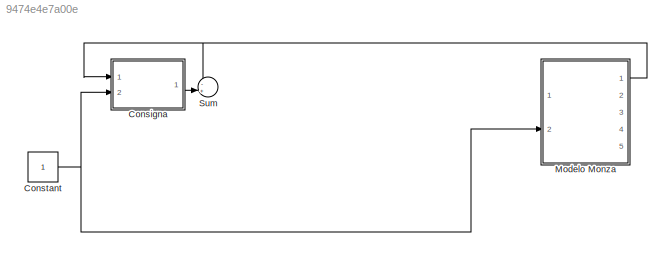
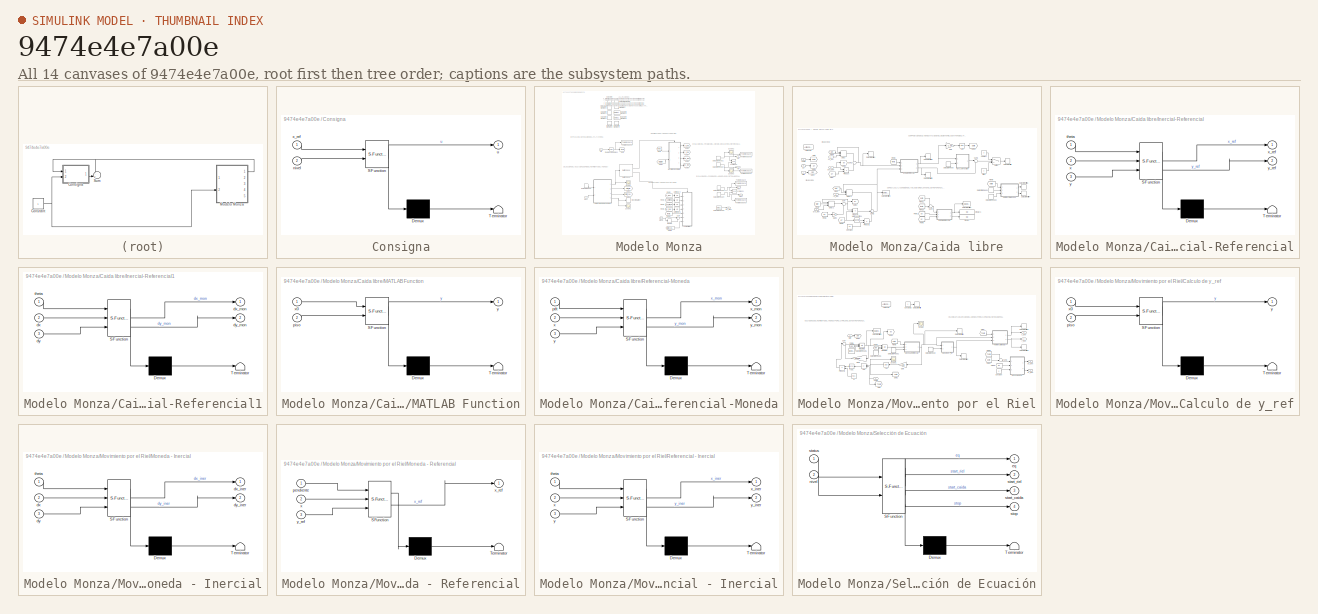
[diagram: thumbnail index - all 14 canvases of the model, root first then tree order]
MODEL slx_9474e4e7a00e
KIND model
CONFIG AbsTol = auto
CONFIG EnableMultiTasking = off
CONFIG FixedStep = 0.001
CONFIG MaxStep = auto
CONFIG MinStep = auto
CONFIG RelTol = 1e-3
CONFIG SampleTimeConstraint = Unconstrained
CONFIG SolverName = FixedStepAuto
CONFIG StartTime = 0.0
CONFIG StopTime = 7
BLOCK [SubSystem] Consigna
  ErrorFcn = Stateflow.Translate.translate
  PermitHierarchicalResolution = ExplicitOnly
  Ports = [2, 1]
  RequestExecContextInheritance = off
  SFBlockType = MATLAB Function
  TreatAsAtomicUnit = on
BLOCK [Demux] Consigna/ Demux 
  Outputs = 1
  Ports = [1, 1]
BLOCK [S-Function] Consigna/ SFunction 
  EnableBusSupport = on
  FunctionName = sf_sfun
  PortCounts = [2 2]
  Ports = [2, 2]
  SFcnIsStateOwnerBlock = off
  SFunctionDeploymentMode = off
  Tag = Stateflow S-Function 6
BLOCK [Terminator] Consigna/ Terminator 
BLOCK [Inport] Consigna/nivel
  Port = 2
BLOCK [Outport] Consigna/u
BLOCK [Inport] Consigna/x_ref
BLOCK [Constant] Constant
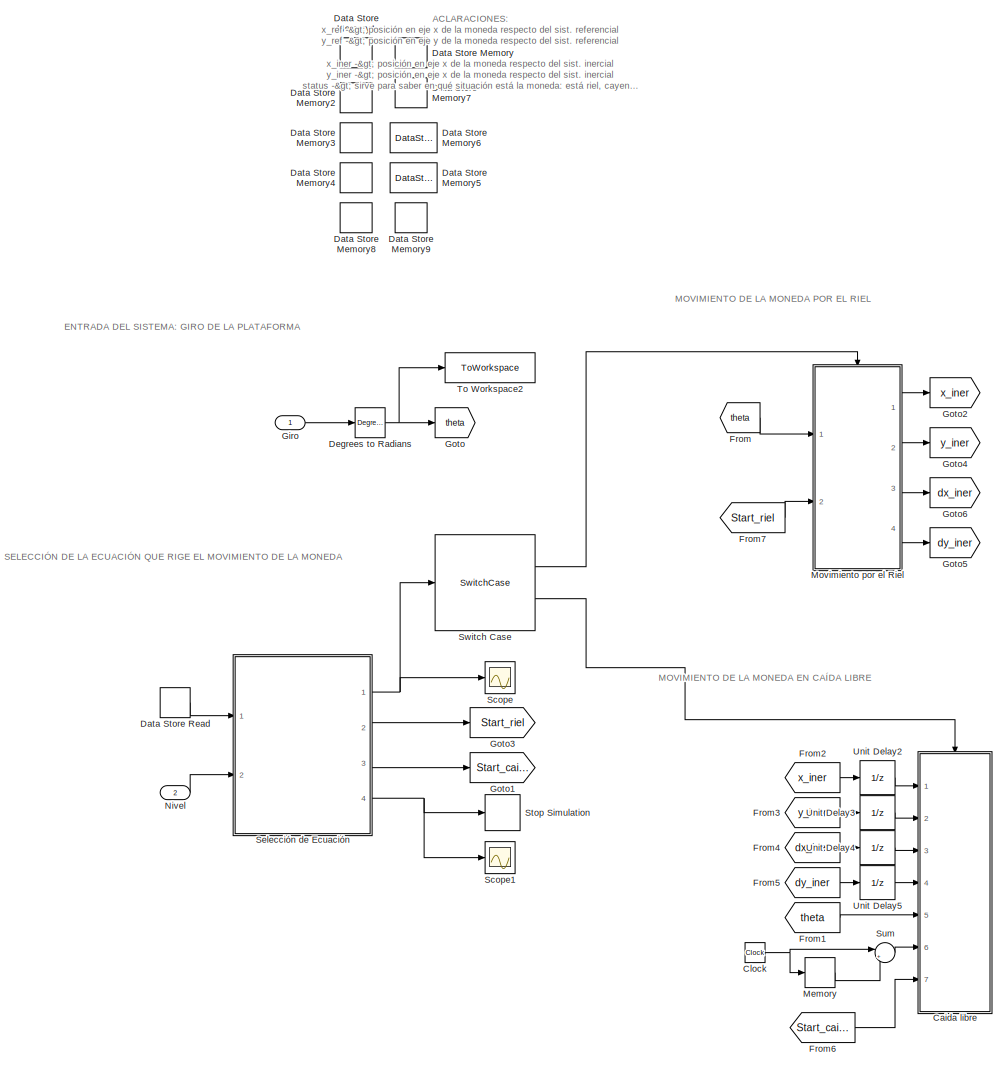
[diagram: Modelo Monza - part 1/2, center side, full height]
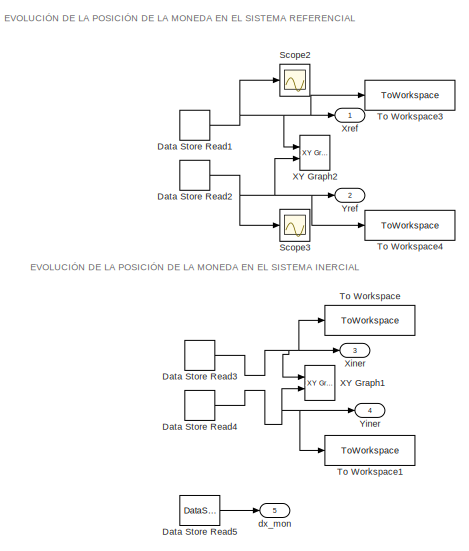
[diagram: Modelo Monza - part 2/2, middle right region]
BLOCK [SubSystem] Modelo Monza
  Ports = [2, 5]
  RequestExecContextInheritance = off
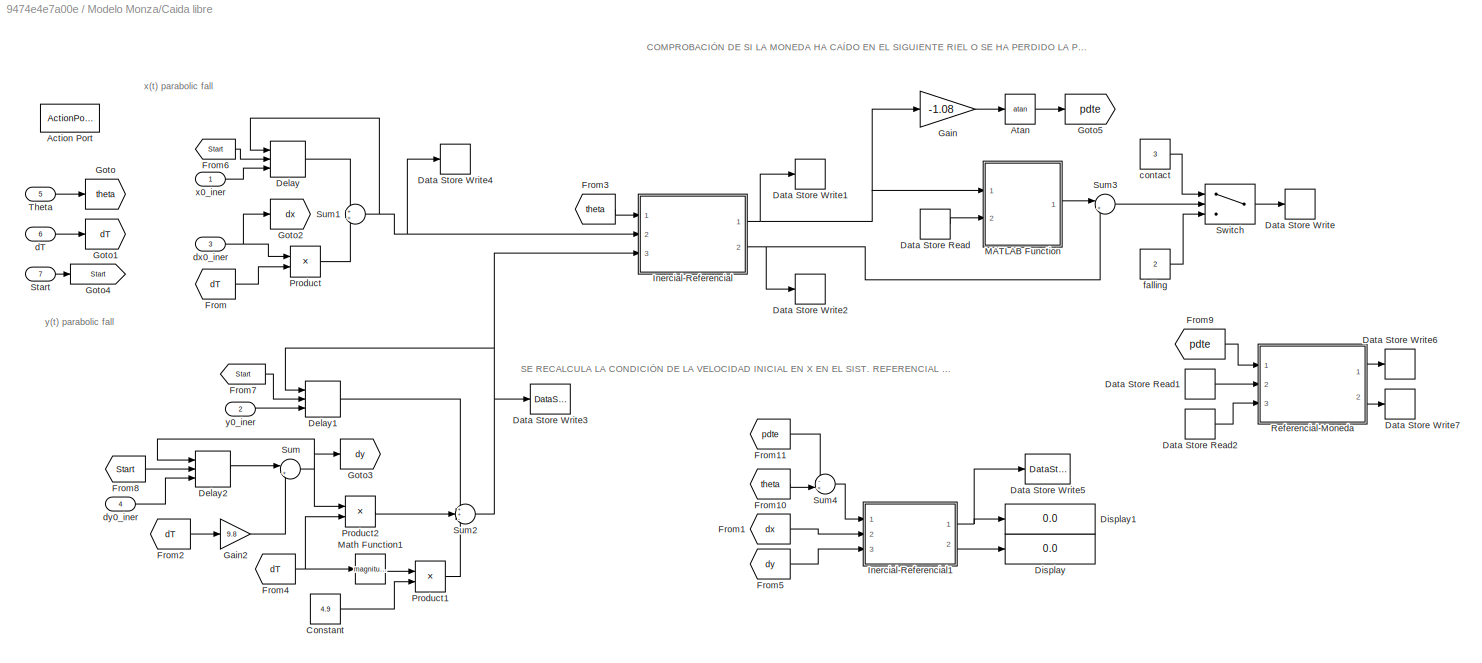
BLOCK [SubSystem] Modelo Monza/Caida libre
  Ports = [7, 0, 0, 0, 0, 0, 0, 1]
  RequestExecContextInheritance = off
  TreatAsAtomicUnit = on
BLOCK [ActionPort] Modelo Monza/Caida libre/Action Port
  ActionPortLabel = case [ 2 ]:
BLOCK [Trigonometry] Modelo Monza/Caida libre/Atan
  Operator = atan
  Ports = [1, 1]
BLOCK [Constant] Modelo Monza/Caida libre/Constant
  Value = 4.9
BLOCK [DataStoreRead] Modelo Monza/Caida libre/Data Store Read
  DataStoreName = Piso
  Ports = [0, 1]
BLOCK [DataStoreRead] Modelo Monza/Caida libre/Data Store Read1
  DataStoreName = x_ref
  Ports = [0, 1]
BLOCK [DataStoreRead] Modelo Monza/Caida libre/Data Store Read2
  DataStoreName = y_ref
  Ports = [0, 1]
BLOCK [DataStoreWrite] Modelo Monza/Caida libre/Data Store Write
  DataStoreName = status
  Ports = [1]
BLOCK [DataStoreWrite] Modelo Monza/Caida libre/Data Store Write1
  DataStoreName = x_ref
  Ports = [1]
BLOCK [DataStoreWrite] Modelo Monza/Caida libre/Data Store Write2
  DataStoreName = y_ref
  Ports = [1]
BLOCK [DataStoreWrite] Modelo Monza/Caida libre/Data Store Write3
  DataStoreName = y_iner
  Ports = [1]
BLOCK [DataStoreWrite] Modelo Monza/Caida libre/Data Store Write4
  DataStoreName = x_iner
  Ports = [1]
BLOCK [DataStoreWrite] Modelo Monza/Caida libre/Data Store Write5
  DataStoreName = dx_mon
  Ports = [1]
BLOCK [DataStoreWrite] Modelo Monza/Caida libre/Data Store Write6
  DataStoreName = x_mon
  Ports = [1]
BLOCK [DataStoreWrite] Modelo Monza/Caida libre/Data Store Write7
  DataStoreName = y_mon
  Ports = [1]
BLOCK [Delay] Modelo Monza/Caida libre/Delay
  DelayLength = 1
  ExternalReset = Rising
  InitialConditionSource = Input port
  InputPortMap = u0,r5,p4
  Ports = [3, 1]
BLOCK [Delay] Modelo Monza/Caida libre/Delay1
  DelayLength = 1
  ExternalReset = Rising
  InitialConditionSource = Input port
  InputPortMap = u0,r5,p4
  Ports = [3, 1]
BLOCK [Delay] Modelo Monza/Caida libre/Delay2
  DelayLength = 1
  ExternalReset = Rising
  InitialConditionSource = Input port
  InputPortMap = u0,r5,p4
  Ports = [3, 1]
BLOCK [Display] Modelo Monza/Caida libre/Display
  Decimation = 1
  Ports = [1]
BLOCK [Display] Modelo Monza/Caida libre/Display1
  Decimation = 1
  Ports = [1]
BLOCK [From] Modelo Monza/Caida libre/From
  GotoTag = dT
BLOCK [From] Modelo Monza/Caida libre/From1
  GotoTag = dx
BLOCK [From] Modelo Monza/Caida libre/From10
  GotoTag = theta
BLOCK [From] Modelo Monza/Caida libre/From11
  GotoTag = pdte
BLOCK [From] Modelo Monza/Caida libre/From2
  GotoTag = dT
BLOCK [From] Modelo Monza/Caida libre/From3
  GotoTag = theta
BLOCK [From] Modelo Monza/Caida libre/From4
  GotoTag = dT
BLOCK [From] Modelo Monza/Caida libre/From5
  GotoTag = dy
BLOCK [From] Modelo Monza/Caida libre/From6
  GotoTag = Start
BLOCK [From] Modelo Monza/Caida libre/From7
  GotoTag = Start
BLOCK [From] Modelo Monza/Caida libre/From8
  GotoTag = Start
BLOCK [From] Modelo Monza/Caida libre/From9
  GotoTag = pdte
BLOCK [Gain] Modelo Monza/Caida libre/Gain
  Gain = -1.08
BLOCK [Gain] Modelo Monza/Caida libre/Gain2
  Gain = 9.8
BLOCK [Goto] Modelo Monza/Caida libre/Goto
  GotoTag = theta
BLOCK [Goto] Modelo Monza/Caida libre/Goto1
  GotoTag = dT
BLOCK [Goto] Modelo Monza/Caida libre/Goto2
  GotoTag = dx
BLOCK [Goto] Modelo Monza/Caida libre/Goto3
  GotoTag = dy
BLOCK [Goto] Modelo Monza/Caida libre/Goto4
  GotoTag = Start
BLOCK [Goto] Modelo Monza/Caida libre/Goto5
  GotoTag = pdte
BLOCK [SubSystem] Modelo Monza/Caida libre/Inercial-Referencial
  ErrorFcn = Stateflow.Translate.translate
  PermitHierarchicalResolution = ExplicitOnly
  Ports = [3, 2]
  RequestExecContextInheritance = off
  SFBlockType = MATLAB Function
  TreatAsAtomicUnit = on
BLOCK [Demux] Modelo Monza/Caida libre/Inercial-Referencial/ Demux 
  Outputs = 1
  Ports = [1, 1]
BLOCK [S-Function] Modelo Monza/Caida libre/Inercial-Referencial/ SFunction 
  EnableBusSupport = on
  FunctionName = sf_sfun
  PortCounts = [3 3]
  Ports = [3, 3]
  SFcnIsStateOwnerBlock = off
  SFunctionDeploymentMode = off
  Tag = Stateflow S-Function 3
BLOCK [Terminator] Modelo Monza/Caida libre/Inercial-Referencial/ Terminator 
BLOCK [Inport] Modelo Monza/Caida libre/Inercial-Referencial/theta
BLOCK [Inport] Modelo Monza/Caida libre/Inercial-Referencial/x
  Port = 2
BLOCK [Outport] Modelo Monza/Caida libre/Inercial-Referencial/x_ref
BLOCK [Inport] Modelo Monza/Caida libre/Inercial-Referencial/y
  Port = 3
BLOCK [Outport] Modelo Monza/Caida libre/Inercial-Referencial/y_ref
  Port = 2
BLOCK [SubSystem] Modelo Monza/Caida libre/Inercial-Referencial1
  ErrorFcn = Stateflow.Translate.translate
  PermitHierarchicalResolution = ExplicitOnly
  Ports = [3, 2]
  RequestExecContextInheritance = off
  SFBlockType = MATLAB Function
  TreatAsAtomicUnit = on
BLOCK [Demux] Modelo Monza/Caida libre/Inercial-Referencial1/ Demux 
  Outputs = 1
  Ports = [1, 1]
BLOCK [S-Function] Modelo Monza/Caida libre/Inercial-Referencial1/ SFunction 
  EnableBusSupport = on
  FunctionName = sf_sfun
  PortCounts = [3 3]
  Ports = [3, 3]
  SFcnIsStateOwnerBlock = off
  SFunctionDeploymentMode = off
  Tag = Stateflow S-Function 5
BLOCK [Terminator] Modelo Monza/Caida libre/Inercial-Referencial1/ Terminator 
BLOCK [Inport] Modelo Monza/Caida libre/Inercial-Referencial1/dx
  Port = 2
BLOCK [Outport] Modelo Monza/Caida libre/Inercial-Referencial1/dx_mon
BLOCK [Inport] Modelo Monza/Caida libre/Inercial-Referencial1/dy
  Port = 3
BLOCK [Outport] Modelo Monza/Caida libre/Inercial-Referencial1/dy_mon
  Port = 2
BLOCK [Inport] Modelo Monza/Caida libre/Inercial-Referencial1/theta
BLOCK [SubSystem] Modelo Monza/Caida libre/MATLAB Function
  ErrorFcn = Stateflow.Translate.translate
  PermitHierarchicalResolution = ExplicitOnly
  Ports = [2, 1]
  RequestExecContextInheritance = off
  SFBlockType = MATLAB Function
  TreatAsAtomicUnit = on
BLOCK [Demux] Modelo Monza/Caida libre/MATLAB Function/ Demux 
  Outputs = 1
  Ports = [1, 1]
BLOCK [S-Function] Modelo Monza/Caida libre/MATLAB Function/ SFunction 
  EnableBusSupport = on
  FunctionName = sf_sfun
  PortCounts = [2 2]
  Ports = [2, 2]
  SFcnIsStateOwnerBlock = off
  SFunctionDeploymentMode = off
  Tag = Stateflow S-Function 7
BLOCK [Terminator] Modelo Monza/Caida libre/MATLAB Function/ Terminator 
BLOCK [Inport] Modelo Monza/Caida libre/MATLAB Function/piso
  Port = 2
BLOCK [Inport] Modelo Monza/Caida libre/MATLAB Function/x0
BLOCK [Outport] Modelo Monza/Caida libre/MATLAB Function/y
BLOCK [Math] Modelo Monza/Caida libre/Math Function1
  Operator = magnitude^2
  Ports = [1, 1]
BLOCK [Product] Modelo Monza/Caida libre/Product
  Ports = [2, 1]
BLOCK [Product] Modelo Monza/Caida libre/Product1
  Ports = [2, 1]
BLOCK [Product] Modelo Monza/Caida libre/Product2
  Ports = [2, 1]
BLOCK [SubSystem] Modelo Monza/Caida libre/Referencial-Moneda
  ErrorFcn = Stateflow.Translate.translate
  PermitHierarchicalResolution = ExplicitOnly
  Ports = [3, 2]
  RequestExecContextInheritance = off
  SFBlockType = MATLAB Function
  TreatAsAtomicUnit = on
BLOCK [Demux] Modelo Monza/Caida libre/Referencial-Moneda/ Demux 
  Outputs = 1
  Ports = [1, 1]
BLOCK [S-Function] Modelo Monza/Caida libre/Referencial-Moneda/ SFunction 
  EnableBusSupport = on
  FunctionName = sf_sfun
  PortCounts = [3 3]
  Ports = [3, 3]
  SFcnIsStateOwnerBlock = off
  SFunctionDeploymentMode = off
  Tag = Stateflow S-Function 10
BLOCK [Terminator] Modelo Monza/Caida libre/Referencial-Moneda/ Terminator 
BLOCK [Inport] Modelo Monza/Caida libre/Referencial-Moneda/pdt
BLOCK [Inport] Modelo Monza/Caida libre/Referencial-Moneda/x
  Port = 2
BLOCK [Outport] Modelo Monza/Caida libre/Referencial-Moneda/x_mon
BLOCK [Inport] Modelo Monza/Caida libre/Referencial-Moneda/y
  Port = 3
BLOCK [Outport] Modelo Monza/Caida libre/Referencial-Moneda/y_mon
  Port = 2
BLOCK [Inport] Modelo Monza/Caida libre/Start
  Port = 7
BLOCK [Sum] Modelo Monza/Caida libre/Sum
  Inputs = |+-
  Ports = [2, 1]
BLOCK [Sum] Modelo Monza/Caida libre/Sum1
  Ports = [2, 1]
BLOCK [Sum] Modelo Monza/Caida libre/Sum2
  Inputs = ++-
  Ports = [3, 1]
BLOCK [Sum] Modelo Monza/Caida libre/Sum3
  Inputs = |+-
  Ports = [2, 1]
BLOCK [Sum] Modelo Monza/Caida libre/Sum4
  Inputs = -+|
  Ports = [2, 1]
BLOCK [Switch] Modelo Monza/Caida libre/Switch
  Criteria = u2 > Threshold
  InputSameDT = off
  SaturateOnIntegerOverflow = off
BLOCK [Inport] Modelo Monza/Caida libre/Theta
  Port = 5
BLOCK [Constant] Modelo Monza/Caida libre/contact
  Value = 3
BLOCK [Inport] Modelo Monza/Caida libre/dT
  Port = 6
BLOCK [Inport] Modelo Monza/Caida libre/dx0_iner
  Port = 3
BLOCK [Inport] Modelo Monza/Caida libre/dy0_iner
  Port = 4
BLOCK [Constant] Modelo Monza/Caida libre/falling
  Value = 2
BLOCK [Inport] Modelo Monza/Caida libre/x0_iner
BLOCK [Inport] Modelo Monza/Caida libre/y0_iner
  Port = 2
BLOCK [Clock] Modelo Monza/Clock
BLOCK [DataStoreMemory] Modelo Monza/Data Store Memory
  DataStoreName = status
  OutDataTypeStr = double
  ReadBeforeWriteMsg = warning
  ShowAdditionalParam = off
  SignalType = real
  WriteAfterReadMsg = warning
  WriteAfterWriteMsg = warning
BLOCK [DataStoreMemory] Modelo Monza/Data Store Memory1
  DataStoreName = x_ref
  InitialValue = -0.11
  OutDataTypeStr = double
  ReadBeforeWriteMsg = warning
  ShowAdditionalParam = off
  SignalType = real
  WriteAfterReadMsg = warning
  WriteAfterWriteMsg = warning
BLOCK [DataStoreMemory] Modelo Monza/Data Store Memory2
  DataStoreName = y_ref
  InitialValue = 0.107766
  OutDataTypeStr = double
  ReadBeforeWriteMsg = warning
  ShowAdditionalParam = off
  SignalType = real
  WriteAfterReadMsg = warning
  WriteAfterWriteMsg = warning
BLOCK [DataStoreMemory] Modelo Monza/Data Store Memory3
  DataStoreName = x_iner
  InitialValue = -0.11
  OutDataTypeStr = double
  ReadBeforeWriteMsg = warning
  ShowAdditionalParam = off
  SignalType = real
  WriteAfterReadMsg = warning
  WriteAfterWriteMsg = warning
BLOCK [DataStoreMemory] Modelo Monza/Data Store Memory4
  DataStoreName = y_iner
  InitialValue = 0.107766
  OutDataTypeStr = double
  ReadBeforeWriteMsg = warning
  ShowAdditionalParam = off
  SignalType = real
  WriteAfterReadMsg = warning
  WriteAfterWriteMsg = warning
BLOCK [DataStoreMemory] Modelo Monza/Data Store Memory5
  DataStoreName = dx_mon
  OutDataTypeStr = double
  ReadBeforeWriteMsg = warning
  ShowAdditionalParam = off
  SignalType = real
  WriteAfterReadMsg = warning
  WriteAfterWriteMsg = warning
BLOCK [DataStoreMemory] Modelo Monza/Data Store Memory6
  DataStoreName = dy_ref
  OutDataTypeStr = double
  ReadBeforeWriteMsg = warning
  ShowAdditionalParam = off
  SignalType = real
  WriteAfterReadMsg = warning
  WriteAfterWriteMsg = warning
BLOCK [DataStoreMemory] Modelo Monza/Data Store Memory7
  DataStoreName = Piso
  InitialValue = 1
  OutDataTypeStr = double
  ReadBeforeWriteMsg = warning
  ShowAdditionalParam = off
  SignalType = real
  WriteAfterReadMsg = warning
  WriteAfterWriteMsg = warning
BLOCK [DataStoreMemory] Modelo Monza/Data Store Memory8
  DataStoreName = x_mon
  InitialValue = -0.11
  OutDataTypeStr = double
  ReadBeforeWriteMsg = warning
  ShowAdditionalParam = off
  SignalType = real
  WriteAfterReadMsg = warning
  WriteAfterWriteMsg = warning
BLOCK [DataStoreMemory] Modelo Monza/Data Store Memory9
  DataStoreName = y_mon
  InitialValue = 0.107766
  OutDataTypeStr = double
  ReadBeforeWriteMsg = warning
  ShowAdditionalParam = off
  SignalType = real
  WriteAfterReadMsg = warning
  WriteAfterWriteMsg = warning
BLOCK [DataStoreRead] Modelo Monza/Data Store Read
  DataStoreName = status
  Ports = [0, 1]
BLOCK [DataStoreRead] Modelo Monza/Data Store Read1
  DataStoreName = x_ref
  Ports = [0, 1]
BLOCK [DataStoreRead] Modelo Monza/Data Store Read2
  DataStoreName = y_ref
  Ports = [0, 1]
BLOCK [DataStoreRead] Modelo Monza/Data Store Read3
  DataStoreName = x_iner
  Ports = [0, 1]
BLOCK [DataStoreRead] Modelo Monza/Data Store Read4
  DataStoreName = y_iner
  Ports = [0, 1]
BLOCK [DataStoreRead] Modelo Monza/Data Store Read5
  DataStoreName = dx_mon
  Ports = [0, 1]
BLOCK [Reference] Modelo Monza/Degrees to Radians  REF=simulink_extras/Transformations/Degrees to
Radians
  Ports = [1, 1]
  SourceBlock = simulink_extras/Transformations/Degrees to\nRadians
  SourceProductBaseCode = SL
  SourceType = DegreesToRadians
BLOCK [From] Modelo Monza/From
  GotoTag = theta
BLOCK [From] Modelo Monza/From1
  GotoTag = theta
BLOCK [From] Modelo Monza/From2
  GotoTag = x_iner
BLOCK [From] Modelo Monza/From3
  GotoTag = y_iner
BLOCK [From] Modelo Monza/From4
  GotoTag = dx_iner
BLOCK [From] Modelo Monza/From5
  GotoTag = dy_iner
BLOCK [From] Modelo Monza/From6
  GotoTag = Start_caida
BLOCK [From] Modelo Monza/From7
  GotoTag = Start_riel
BLOCK [Inport] Modelo Monza/Giro
BLOCK [Goto] Modelo Monza/Goto
  GotoTag = theta
BLOCK [Goto] Modelo Monza/Goto1
  GotoTag = Start_caida
BLOCK [Goto] Modelo Monza/Goto2
  GotoTag = x_iner
BLOCK [Goto] Modelo Monza/Goto3
  GotoTag = Start_riel
BLOCK [Goto] Modelo Monza/Goto4
  GotoTag = y_iner
BLOCK [Goto] Modelo Monza/Goto5
  GotoTag = dy_iner
BLOCK [Goto] Modelo Monza/Goto6
  GotoTag = dx_iner
BLOCK [Memory] Modelo Monza/Memory
BLOCK [SubSystem] Modelo Monza/Movimiento por el Riel
  Ports = [2, 4, 0, 0, 0, 0, 0, 1]
  RequestExecContextInheritance = off
  TreatAsAtomicUnit = on
BLOCK [ActionPort] Modelo Monza/Movimiento por el Riel/Action Port
  ActionPortLabel = case [ 1 ]:
BLOCK [Sum] Modelo Monza/Movimiento por el Riel/Add
  IconShape = rectangular
  Inputs = +-
  NameLocation = top
  Ports = [2, 1]
BLOCK [SubSystem] Modelo Monza/Movimiento por el Riel/Calculo de y_ref
  ErrorFcn = Stateflow.Translate.translate
  PermitHierarchicalResolution = ExplicitOnly
  Ports = [2, 1]
  RequestExecContextInheritance = off
  SFBlockType = MATLAB Function
  TreatAsAtomicUnit = on
BLOCK [Demux] Modelo Monza/Movimiento por el Riel/Calculo de y_ref/ Demux 
  Outputs = 1
  Ports = [1, 1]
BLOCK [S-Function] Modelo Monza/Movimiento por el Riel/Calculo de y_ref/ SFunction 
  EnableBusSupport = on
  FunctionName = sf_sfun
  PortCounts = [2 2]
  Ports = [2, 2]
  SFcnIsStateOwnerBlock = off
  SFunctionDeploymentMode = off
  Tag = Stateflow S-Function 2
BLOCK [Terminator] Modelo Monza/Movimiento por el Riel/Calculo de y_ref/ Terminator 
BLOCK [Inport] Modelo Monza/Movimiento por el Riel/Calculo de y_ref/piso
  Port = 2
BLOCK [Inport] Modelo Monza/Movimiento por el Riel/Calculo de y_ref/x0
BLOCK [Outport] Modelo Monza/Movimiento por el Riel/Calculo de y_ref/y
BLOCK [Constant] Modelo Monza/Movimiento por el Riel/Constant
  Value = 0
BLOCK [Constant] Modelo Monza/Movimiento por el Riel/Constant2
BLOCK [DataStoreRead] Modelo Monza/Movimiento por el Riel/Data Store Read
  DataStoreName = Piso
  Ports = [0, 1]
BLOCK [DataStoreRead] Modelo Monza/Movimiento por el Riel/Data Store Read1
  DataStoreName = y_ref
  Ports = [0, 1]
BLOCK [DataStoreRead] Modelo Monza/Movimiento por el Riel/Data Store Read5
  DataStoreName = dx_mon
  Ports = [0, 1]
BLOCK [DataStoreRead] Modelo Monza/Movimiento por el Riel/Data Store Read6
  DataStoreName = x_mon
  Ports = [0, 1]
BLOCK [DataStoreWrite] Modelo Monza/Movimiento por el Riel/Data Store Write
  DataStoreName = status
  Ports = [1]
BLOCK [DataStoreWrite] Modelo Monza/Movimiento por el Riel/Data Store Write1
  DataStoreName = x_ref
  Ports = [1]
BLOCK [DataStoreWrite] Modelo Monza/Movimiento por el Riel/Data Store Write2
  DataStoreName = y_ref
  Ports = [1]
BLOCK [DataStoreWrite] Modelo Monza/Movimiento por el Riel/Data Store Write3
  DataStoreName = y_iner
  Ports = [1]
BLOCK [DataStoreWrite] Modelo Monza/Movimiento por el Riel/Data Store Write4
  DataStoreName = x_iner
  Ports = [1]
BLOCK [DataStoreWrite] Modelo Monza/Movimiento por el Riel/Data Store Write5
  DataStoreName = dx_mon
  Ports = [1]
BLOCK [From] Modelo Monza/Movimiento por el Riel/From
  GotoTag = Theta
BLOCK [From] Modelo Monza/Movimiento por el Riel/From1
  GotoTag = Theta
BLOCK [From] Modelo Monza/Movimiento por el Riel/From3
  GotoTag = dx
BLOCK [From] Modelo Monza/Movimiento por el Riel/From4
  GotoTag = Start
BLOCK [From] Modelo Monza/Movimiento por el Riel/From5
  GotoTag = Start
BLOCK [From] Modelo Monza/Movimiento por el Riel/From6
  GotoTag = pdte
BLOCK [From] Modelo Monza/Movimiento por el Riel/From7
  GotoTag = pdte
BLOCK [Gain] Modelo Monza/Movimiento por el Riel/Gain
  Gain = -1.08
  NameLocation = top
BLOCK [Goto] Modelo Monza/Movimiento por el Riel/Goto
  GotoTag = Theta
BLOCK [Goto] Modelo Monza/Movimiento por el Riel/Goto1
  GotoTag = dx
BLOCK [Goto] Modelo Monza/Movimiento por el Riel/Goto2
  GotoTag = pdte
BLOCK [Goto] Modelo Monza/Movimiento por el Riel/Goto3
  GotoTag = Start
BLOCK [Integrator] Modelo Monza/Movimiento por el Riel/Integrator
  ExternalReset = rising
  InitialConditionSource = external
  Ports = [3, 1]
BLOCK [Integrator] Modelo Monza/Movimiento por el Riel/Integrator1
  ExternalReset = rising
  InitialConditionSource = external
  Ports = [3, 1]
BLOCK [SubSystem] Modelo Monza/Movimiento por el Riel/Moneda - Inercial
  ErrorFcn = Stateflow.Translate.translate
  PermitHierarchicalResolution = ExplicitOnly
  Ports = [3, 2]
  RequestExecContextInheritance = off
  SFBlockType = MATLAB Function
  TreatAsAtomicUnit = on
BLOCK [Demux] Modelo Monza/Movimiento por el Riel/Moneda - Inercial/ Demux 
  Outputs = 1
  Ports = [1, 1]
BLOCK [S-Function] Modelo Monza/Movimiento por el Riel/Moneda - Inercial/ SFunction 
  EnableBusSupport = on
  FunctionName = sf_sfun
  PortCounts = [3 3]
  Ports = [3, 3]
  SFcnIsStateOwnerBlock = off
  SFunctionDeploymentMode = off
  Tag = Stateflow S-Function 9
BLOCK [Terminator] Modelo Monza/Movimiento por el Riel/Moneda - Inercial/ Terminator 
BLOCK [Inport] Modelo Monza/Movimiento por el Riel/Moneda - Inercial/dx
  Port = 2
BLOCK [Outport] Modelo Monza/Movimiento por el Riel/Moneda - Inercial/dx_iner
BLOCK [Inport] Modelo Monza/Movimiento por el Riel/Moneda - Inercial/dy
  Port = 3
BLOCK [Outport] Modelo Monza/Movimiento por el Riel/Moneda - Inercial/dy_iner
  Port = 2
BLOCK [Inport] Modelo Monza/Movimiento por el Riel/Moneda - Inercial/theta
BLOCK [SubSystem] Modelo Monza/Movimiento por el Riel/Moneda - Referencial
  ErrorFcn = Stateflow.Translate.translate
  PermitHierarchicalResolution = ExplicitOnly
  Ports = [3, 1]
  RequestExecContextInheritance = off
  SFBlockType = MATLAB Function
  TreatAsAtomicUnit = on
BLOCK [Demux] Modelo Monza/Movimiento por el Riel/Moneda - Referencial/ Demux 
  Outputs = 1
  Ports = [1, 1]
BLOCK [S-Function] Modelo Monza/Movimiento por el Riel/Moneda - Referencial/ SFunction 
  EnableBusSupport = on
  FunctionName = sf_sfun
  PortCounts = [3 2]
  Ports = [3, 2]
  SFcnIsStateOwnerBlock = off
  SFunctionDeploymentMode = off
  Tag = Stateflow S-Function 1
BLOCK [Terminator] Modelo Monza/Movimiento por el Riel/Moneda - Referencial/ Terminator 
BLOCK [Inport] Modelo Monza/Movimiento por el Riel/Moneda - Referencial/pendiente
BLOCK [Inport] Modelo Monza/Movimiento por el Riel/Moneda - Referencial/x
  Port = 2
BLOCK [Outport] Modelo Monza/Movimiento por el Riel/Moneda - Referencial/x_ref
BLOCK [Inport] Modelo Monza/Movimiento por el Riel/Moneda - Referencial/y_ref
  Port = 3
BLOCK [Product] Modelo Monza/Movimiento por el Riel/Product1
  NameLocation = top
  Ports = [2, 1]
BLOCK [SubSystem] Modelo Monza/Movimiento por el Riel/Referencial - Inercial
  ErrorFcn = Stateflow.Translate.translate
  PermitHierarchicalResolution = ExplicitOnly
  Ports = [3, 2]
  RequestExecContextInheritance = off
  SFBlockType = MATLAB Function
  TreatAsAtomicUnit = on
BLOCK [Demux] Modelo Monza/Movimiento por el Riel/Referencial - Inercial/ Demux 
  Outputs = 1
  Ports = [1, 1]
BLOCK [S-Function] Modelo Monza/Movimiento por el Riel/Referencial - Inercial/ SFunction 
  EnableBusSupport = on
  FunctionName = sf_sfun
  PortCounts = [3 3]
  Ports = [3, 3]
  SFcnIsStateOwnerBlock = off
  SFunctionDeploymentMode = off
  Tag = Stateflow S-Function 8
BLOCK [Terminator] Modelo Monza/Movimiento por el Riel/Referencial - Inercial/ Terminator 
BLOCK [Inport] Modelo Monza/Movimiento por el Riel/Referencial - Inercial/theta
BLOCK [Inport] Modelo Monza/Movimiento por el Riel/Referencial - Inercial/x
  Port = 2
BLOCK [Outport] Modelo Monza/Movimiento por el Riel/Referencial - Inercial/x_iner
BLOCK [Inport] Modelo Monza/Movimiento por el Riel/Referencial - Inercial/y
  Port = 3
BLOCK [Outport] Modelo Monza/Movimiento por el Riel/Referencial - Inercial/y_iner
  Port = 2
BLOCK [Scope] Modelo Monza/Movimiento por el Riel/Scope
  Floating = off
  NumInputPorts = 1
  Ports = [1]
  ScopeSpecificationString = Simulink.scopes.TimeScopeBlockCfg('CurrentConfiguration', extmgr.ConfigurationSet(extmgr.Configuration('Core','General UI',true),extmgr.Configuration('Core','Source UI',true),extmgr.Configuration('Sources','WiredSimulink',true,'DataLoggingVariableName','ScopeData1'),extmgr.Configuration('Visuals','Time Domain',true),extmgr.Configuration('Tools','Plot Navigation',true),extmgr.Configuration('Tools',...<+40ch>
BLOCK [Scope] Modelo Monza/Movimiento por el Riel/Scope1
  Floating = off
  NumInputPorts = 1
  Ports = [1]
  ScopeSpecificationString = Simulink.scopes.TimeScopeBlockCfg('CurrentConfiguration', extmgr.ConfigurationSet(extmgr.Configuration('Core','General UI',true),extmgr.Configuration('Core','Source UI',true),extmgr.Configuration('Sources','WiredSimulink',true,'DataLoggingVariableName','ScopeData1'),extmgr.Configuration('Visuals','Time Domain',true,'SerializedDisplays',{struct('MinYLimReal','-0.1598','MaxYLimReal','0.16028','YLabe...<+1360ch>
BLOCK [Inport] Modelo Monza/Movimiento por el Riel/Start
  Port = 2
BLOCK [Sum] Modelo Monza/Movimiento por el Riel/Sum
  Inputs = |+-
  Ports = [2, 1]
BLOCK [Sum] Modelo Monza/Movimiento por el Riel/Sum1
  Inputs = +-|
  Ports = [2, 1]
BLOCK [Trigonometry] Modelo Monza/Movimiento por el Riel/Tan
  NameLocation = top
  Operator = atan
  Ports = [1, 1]
BLOCK [Trigonometry] Modelo Monza/Movimiento por el Riel/Tan1
  NameLocation = top
  Ports = [1, 1]
BLOCK [Inport] Modelo Monza/Movimiento por el Riel/Theta
  NameLocation = top
BLOCK [Outport] Modelo Monza/Movimiento por el Riel/dx_iner
  Port = 3
BLOCK [Outport] Modelo Monza/Movimiento por el Riel/dy_iner
  Port = 4
BLOCK [Constant] Modelo Monza/Movimiento por el Riel/g
  NameLocation = top
  Value = -9.81
BLOCK [Gain] Modelo Monza/Movimiento por el Riel/mu//M
  Gain = 0.265/0.1
BLOCK [Outport] Modelo Monza/Movimiento por el Riel/x_iner
BLOCK [Outport] Modelo Monza/Movimiento por el Riel/y_iner
  Port = 2
BLOCK [Inport] Modelo Monza/Nivel
  Port = 2
BLOCK [Scope] Modelo Monza/Scope
  Floating = off
  NumInputPorts = 1
  Ports = [1]
  ScopeSpecificationString = Simulink.scopes.TimeScopeBlockCfg('CurrentConfiguration', extmgr.ConfigurationSet(extmgr.Configuration('Core','General UI',true),extmgr.Configuration('Core','Source UI',true),extmgr.Configuration('Sources','WiredSimulink',true,'DataLoggingVariableName','ScopeData1'),extmgr.Configuration('Visuals','Time Domain',true,'SerializedDisplays',{struct('MinYLimReal','0.875','MaxYLimReal','2.125','YLabelRea...<+1463ch>
BLOCK [Scope] Modelo Monza/Scope1
  Floating = off
  NumInputPorts = 1
  Ports = [1]
  ScopeSpecificationString = Simulink.scopes.TimeScopeBlockCfg('CurrentConfiguration', extmgr.ConfigurationSet(extmgr.Configuration('Core','General UI',true),extmgr.Configuration('Core','Source UI',true),extmgr.Configuration('Sources','WiredSimulink',true,'DataLoggingVariableName','ScopeData5'),extmgr.Configuration('Visuals','Time Domain',true,'SerializedDisplays',{struct('MinYLimReal','-0.125','MaxYLimReal','1.125','YLabelRe...<+1471ch>
BLOCK [Scope] Modelo Monza/Scope2
  Floating = off
  NumInputPorts = 1
  Ports = [1]
  ScopeSpecificationString = Simulink.scopes.TimeScopeBlockCfg('CurrentConfiguration', extmgr.ConfigurationSet(extmgr.Configuration('Core','General UI',true),extmgr.Configuration('Core','Source UI',true),extmgr.Configuration('Sources','WiredSimulink',true,'DataLoggingVariableName','ScopeData2'),extmgr.Configuration('Visuals','Time Domain',true,'SerializedDisplays',{struct('MinYLimReal','-2.51805','MaxYLimReal','20.13238','YLa...<+1794ch>
BLOCK [Scope] Modelo Monza/Scope3
  Floating = off
  NumInputPorts = 1
  Ports = [1]
  ScopeSpecificationString = Simulink.scopes.TimeScopeBlockCfg('CurrentConfiguration', extmgr.ConfigurationSet(extmgr.Configuration('Core','General UI',true),extmgr.Configuration('Core','Source UI',true),extmgr.Configuration('Sources','WiredSimulink',true,'DataLoggingVariableName','ScopeData1'),extmgr.Configuration('Visuals','Time Domain',true,'SerializedDisplays',{struct('MinYLimReal','0.03825','MaxYLimReal','0.12275','YLabe...<+1400ch>
BLOCK [SubSystem] Modelo Monza/Selección de Ecuación
  ErrorFcn = Stateflow.Translate.translate
  PermitHierarchicalResolution = ExplicitOnly
  Ports = [2, 4]
  RequestExecContextInheritance = off
  SFBlockType = MATLAB Function
  TreatAsAtomicUnit = on
BLOCK [Demux] Modelo Monza/Selección de Ecuación/ Demux 
  Outputs = 1
  Ports = [1, 1]
BLOCK [S-Function] Modelo Monza/Selección de Ecuación/ SFunction 
  EnableBusSupport = on
  FunctionName = sf_sfun
  PortCounts = [2 5]
  Ports = [2, 5]
  SFcnIsStateOwnerBlock = off
  SFunctionDeploymentMode = off
  Tag = Stateflow S-Function 4
BLOCK [Terminator] Modelo Monza/Selección de Ecuación/ Terminator 
BLOCK [Outport] Modelo Monza/Selección de Ecuación/eq
BLOCK [Inport] Modelo Monza/Selección de Ecuación/nivel
  Port = 2
BLOCK [Outport] Modelo Monza/Selección de Ecuación/start_caida
  Port = 3
BLOCK [Outport] Modelo Monza/Selección de Ecuación/start_riel
  Port = 2
BLOCK [Inport] Modelo Monza/Selección de Ecuación/status
BLOCK [Outport] Modelo Monza/Selección de Ecuación/stop
  Port = 4
BLOCK [Stop] Modelo Monza/Stop Simulation
BLOCK [Sum] Modelo Monza/Sum
  Inputs = |+-
  Ports = [2, 1]
BLOCK [SwitchCase] Modelo Monza/Switch Case
  CaseConditions = {1,2}
  Ports = [1, 2]
  ShowDefaultCase = off
BLOCK [ToWorkspace] Modelo Monza/To Workspace
  FixptAsFi = on
  MaxDataPoints = inf
  Ports = [1]
  SampleTime = 0.01
  VariableName = xs
BLOCK [ToWorkspace] Modelo Monza/To Workspace1
  FixptAsFi = on
  MaxDataPoints = inf
  Ports = [1]
  SampleTime = 0.01
  VariableName = ys
BLOCK [ToWorkspace] Modelo Monza/To Workspace2
  FixptAsFi = on
  MaxDataPoints = inf
  Ports = [1]
  SampleTime = 0.01
  VariableName = giro_m
BLOCK [ToWorkspace] Modelo Monza/To Workspace3
  FixptAsFi = on
  MaxDataPoints = inf
  Ports = [1]
  SampleTime = 0.01
  VariableName = x_ref
BLOCK [ToWorkspace] Modelo Monza/To Workspace4
  FixptAsFi = on
  MaxDataPoints = inf
  Ports = [1]
  SampleTime = 0.01
  VariableName = y_ref
BLOCK [UnitDelay] Modelo Monza/Unit Delay2
  HasFrameUpgradeWarning = on
  SampleTime = -1
BLOCK [UnitDelay] Modelo Monza/Unit Delay3
  HasFrameUpgradeWarning = on
  SampleTime = -1
BLOCK [UnitDelay] Modelo Monza/Unit Delay4
  HasFrameUpgradeWarning = on
  SampleTime = -1
BLOCK [UnitDelay] Modelo Monza/Unit Delay5
  HasFrameUpgradeWarning = on
  SampleTime = -1
BLOCK [Reference] Modelo Monza/XY Graph1  REF=simulink/Sinks/XY Graph
  Ports = [2]
  SourceBlock = simulink/Sinks/XY Graph
  SourceProductBaseCode = SL
  SourceType = XY scope.
BLOCK [Reference] Modelo Monza/XY Graph2  REF=simulink/Sinks/XY Graph
  Ports = [2]
  SourceBlock = simulink/Sinks/XY Graph
  SourceProductBaseCode = SL
  SourceType = XY scope.
BLOCK [Outport] Modelo Monza/Xiner
  Port = 3
BLOCK [Outport] Modelo Monza/Xref
BLOCK [Outport] Modelo Monza/Yiner
  Port = 4
BLOCK [Outport] Modelo Monza/Yref
  Port = 2
BLOCK [Outport] Modelo Monza/dx_mon
  Port = 5
BLOCK [Sum] Sum
  Inputs = -+|
  Ports = [2, 1]
ANNOTATION Modelo Monza: ACLARACIONES : x_ref -> posición en eje x de la moneda respecto del sist. referencial y_ref -> posición en eje y de la moneda respecto del sist. referencial x_iner -> posición en eje x de la moneda respecto del sist. inercial y_iner -> posición en eje x de la moneda respecto del sist. inercial status -> sirve para saber en qué situación está la moneda: está riel, cayendo o chocando. dx_mon -> velo...<+200ch>
ANNOTATION Modelo Monza: ENTRADA DEL SISTEMA: GIRO DE LA PLATAFORMA
ANNOTATION Modelo Monza: EVOLUCIÓN DE LA POSICIÓN DE LA MONEDA EN EL SISTEMA INERCIAL
ANNOTATION Modelo Monza: EVOLUCIÓN DE LA POSICIÓN DE LA MONEDA EN EL SISTEMA REFERENCIAL
ANNOTATION Modelo Monza: MOVIMIENTO DE LA MONEDA EN CAÍDA LIBRE
ANNOTATION Modelo Monza: MOVIMIENTO DE LA MONEDA POR EL RIEL
ANNOTATION Modelo Monza: SELECCIÓN DE LA ECUACIÓN QUE RIGE EL MOVIMIENTO DE LA MONEDA
ANNOTATION Modelo Monza/Caida libre: SE RECALCULA LA CONDICIÓN DE LA VELOCIDAD INICIAL EN X EN EL SIST. REFERENCIAL CON LA QUE LA MONEDA PASA AL SIGUIENTE RIEL
ANNOTATION Modelo Monza/Caida libre: COMPROBACIÓN DE SI LA MONEDA HA CAÍDO EN EL SIGUIENTE RIEL O SE HA PERDIDO LA PARTIDA
ANNOTATION Modelo Monza/Caida libre: x(t) parabolic fall
ANNOTATION Modelo Monza/Caida libre: y(t) parabolic fall
ANNOTATION Modelo Monza/Movimiento por el Riel: ECUACIONES DEL MOVIMIENTO DE LA MONEDA POR EL CARRIL EN EL SISTEMA REFERENCIAL
ANNOTATION Modelo Monza/Movimiento por el Riel: VELOCIDAD Y ACELERACIÓN DE LA MONEDA POR EL CARRIL EN EL SISTEMA INERCIAL
LINE Consigna:1 -> Sum:2
NET Constant:1 -> Consigna:2, Modelo Monza:2
LINE Modelo Monza/Caida libre/Atan:1 -> Modelo Monza/Caida libre/Goto5:1
LINE Modelo Monza/Caida libre/Constant:1 -> Modelo Monza/Caida libre/Product1:2
LINE Modelo Monza/Caida libre/Data Store Read1:1 -> Modelo Monza/Caida libre/Referencial-Moneda:2
LINE Modelo Monza/Caida libre/Data Store Read2:1 -> Modelo Monza/Caida libre/Referencial-Moneda:3
LINE Modelo Monza/Caida libre/Data Store Read:1 -> Modelo Monza/Caida libre/MATLAB Function:2
LINE Modelo Monza/Caida libre/Delay1:1 -> Modelo Monza/Caida libre/Sum2:1
LINE Modelo Monza/Caida libre/Delay2:1 -> Modelo Monza/Caida libre/Sum:1
LINE Modelo Monza/Caida libre/Delay:1 -> Modelo Monza/Caida libre/Sum1:1
LINE Modelo Monza/Caida libre/From10:1 -> Modelo Monza/Caida libre/Sum4:2
LINE Modelo Monza/Caida libre/From11:1 -> Modelo Monza/Caida libre/Sum4:1
LINE Modelo Monza/Caida libre/From1:1 -> Modelo Monza/Caida libre/Inercial-Referencial1:2
LINE Modelo Monza/Caida libre/From2:1 -> Modelo Monza/Caida libre/Gain2:1
LINE Modelo Monza/Caida libre/From3:1 -> Modelo Monza/Caida libre/Inercial-Referencial:1
NET Modelo Monza/Caida libre/From4:1 -> Modelo Monza/Caida libre/Math Function1:1, Modelo Monza/Caida libre/Product2:2
LINE Modelo Monza/Caida libre/From5:1 -> Modelo Monza/Caida libre/Inercial-Referencial1:3
LINE Modelo Monza/Caida libre/From6:1 -> Modelo Monza/Caida libre/Delay:2
LINE Modelo Monza/Caida libre/From7:1 -> Modelo Monza/Caida libre/Delay1:2
LINE Modelo Monza/Caida libre/From8:1 -> Modelo Monza/Caida libre/Delay2:2
LINE Modelo Monza/Caida libre/From9:1 -> Modelo Monza/Caida libre/Referencial-Moneda:1
LINE Modelo Monza/Caida libre/From:1 -> Modelo Monza/Caida libre/Product:2
LINE Modelo Monza/Caida libre/Gain2:1 -> Modelo Monza/Caida libre/Sum:2
LINE Modelo Monza/Caida libre/Gain:1 -> Modelo Monza/Caida libre/Atan:1
NET Modelo Monza/Caida libre/Inercial-Referencial1:1 -> Modelo Monza/Caida libre/Data Store Write5:1, Modelo Monza/Caida libre/Display1:1
LINE Modelo Monza/Caida libre/Inercial-Referencial1:2 -> Modelo Monza/Caida libre/Display:1
NET Modelo Monza/Caida libre/Inercial-Referencial:1 -> Modelo Monza/Caida libre/Data Store Write1:1, Modelo Monza/Caida libre/Gain:1, Modelo Monza/Caida libre/MATLAB Function:1
NET Modelo Monza/Caida libre/Inercial-Referencial:2 -> Modelo Monza/Caida libre/Data Store Write2:1, Modelo Monza/Caida libre/Sum3:2
LINE Modelo Monza/Caida libre/MATLAB Function:1 -> Modelo Monza/Caida libre/Sum3:1
LINE Modelo Monza/Caida libre/Math Function1:1 -> Modelo Monza/Caida libre/Product1:1
LINE Modelo Monza/Caida libre/Product1:1 -> Modelo Monza/Caida libre/Sum2:3
LINE Modelo Monza/Caida libre/Product2:1 -> Modelo Monza/Caida libre/Sum2:2
LINE Modelo Monza/Caida libre/Product:1 -> Modelo Monza/Caida libre/Sum1:2
LINE Modelo Monza/Caida libre/Referencial-Moneda:1 -> Modelo Monza/Caida libre/Data Store Write6:1
LINE Modelo Monza/Caida libre/Referencial-Moneda:2 -> Modelo Monza/Caida libre/Data Store Write7:1
LINE Modelo Monza/Caida libre/Start:1 -> Modelo Monza/Caida libre/Goto4:1
NET Modelo Monza/Caida libre/Sum1:1 -> Modelo Monza/Caida libre/Data Store Write4:1, Modelo Monza/Caida libre/Delay:1, Modelo Monza/Caida libre/Inercial-Referencial:2
NET Modelo Monza/Caida libre/Sum2:1 -> Modelo Monza/Caida libre/Data Store Write3:1, Modelo Monza/Caida libre/Delay1:1, Modelo Monza/Caida libre/Inercial-Referencial:3
LINE Modelo Monza/Caida libre/Sum3:1 -> Modelo Monza/Caida libre/Switch:2
LINE Modelo Monza/Caida libre/Sum4:1 -> Modelo Monza/Caida libre/Inercial-Referencial1:1
NET Modelo Monza/Caida libre/Sum:1 -> Modelo Monza/Caida libre/Delay2:1, Modelo Monza/Caida libre/Goto3:1, Modelo Monza/Caida libre/Product2:1
LINE Modelo Monza/Caida libre/Switch:1 -> Modelo Monza/Caida libre/Data Store Write:1
LINE Modelo Monza/Caida libre/Theta:1 -> Modelo Monza/Caida libre/Goto:1
LINE Modelo Monza/Caida libre/contact:1 -> Modelo Monza/Caida libre/Switch:1
LINE Modelo Monza/Caida libre/dT:1 -> Modelo Monza/Caida libre/Goto1:1
NET Modelo Monza/Caida libre/dx0_iner:1 -> Modelo Monza/Caida libre/Goto2:1, Modelo Monza/Caida libre/Product:1
LINE Modelo Monza/Caida libre/dy0_iner:1 -> Modelo Monza/Caida libre/Delay2:3
LINE Modelo Monza/Caida libre/falling:1 -> Modelo Monza/Caida libre/Switch:3
LINE Modelo Monza/Caida libre/x0_iner:1 -> Modelo Monza/Caida libre/Delay:3
LINE Modelo Monza/Caida libre/y0_iner:1 -> Modelo Monza/Caida libre/Delay1:3
NET Modelo Monza/Clock:1 -> Modelo Monza/Memory:1, Modelo Monza/Sum:1
NET Modelo Monza/Data Store Read1:1 -> Modelo Monza/Scope2:1, Modelo Monza/To Workspace3:1, Modelo Monza/XY Graph2:1, Modelo Monza/Xref:1
NET Modelo Monza/Data Store Read2:1 -> Modelo Monza/Scope3:1, Modelo Monza/To Workspace4:1, Modelo Monza/XY Graph2:2, Modelo Monza/Yref:1
NET Modelo Monza/Data Store Read3:1 -> Modelo Monza/To Workspace:1, Modelo Monza/XY Graph1:1, Modelo Monza/Xiner:1
NET Modelo Monza/Data Store Read4:1 -> Modelo Monza/To Workspace1:1, Modelo Monza/XY Graph1:2, Modelo Monza/Yiner:1
LINE Modelo Monza/Data Store Read5:1 -> Modelo Monza/dx_mon:1
LINE Modelo Monza/Data Store Read:1 -> Modelo Monza/Selección de Ecuación:1
NET Modelo Monza/Degrees to Radians:1 -> Modelo Monza/Goto:1, Modelo Monza/To Workspace2:1
LINE Modelo Monza/From1:1 -> Modelo Monza/Caida libre:5
LINE Modelo Monza/From2:1 -> Modelo Monza/Unit Delay2:1
LINE Modelo Monza/From3:1 -> Modelo Monza/Unit Delay3:1
LINE Modelo Monza/From4:1 -> Modelo Monza/Unit Delay4:1
LINE Modelo Monza/From5:1 -> Modelo Monza/Unit Delay5:1
LINE Modelo Monza/From6:1 -> Modelo Monza/Caida libre:7
LINE Modelo Monza/From7:1 -> Modelo Monza/Movimiento por el Riel:2
LINE Modelo Monza/From:1 -> Modelo Monza/Movimiento por el Riel:1
LINE Modelo Monza/Giro:1 -> Modelo Monza/Degrees to Radians:1
LINE Modelo Monza/Memory:1 -> Modelo Monza/Sum:2
LINE Modelo Monza/Movimiento por el Riel/Add:1 -> Modelo Monza/Movimiento por el Riel/Tan1:1
NET Modelo Monza/Movimiento por el Riel/Calculo de y_ref:1 -> Modelo Monza/Movimiento por el Riel/Data Store Write2:1, Modelo Monza/Movimiento por el Riel/Referencial - Inercial:3
LINE Modelo Monza/Movimiento por el Riel/Constant2:1 -> Modelo Monza/Movimiento por el Riel/Data Store Write:1
LINE Modelo Monza/Movimiento por el Riel/Constant:1 -> Modelo Monza/Movimiento por el Riel/Moneda - Inercial:3
LINE Modelo Monza/Movimiento por el Riel/Data Store Read1:1 -> Modelo Monza/Movimiento por el Riel/Moneda - Referencial:3
LINE Modelo Monza/Movimiento por el Riel/Data Store Read5:1 -> Modelo Monza/Movimiento por el Riel/Integrator1:3
LINE Modelo Monza/Movimiento por el Riel/Data Store Read6:1 -> Modelo Monza/Movimiento por el Riel/Integrator:3
LINE Modelo Monza/Movimiento por el Riel/Data Store Read:1 -> Modelo Monza/Movimiento por el Riel/Calculo de y_ref:2
LINE Modelo Monza/Movimiento por el Riel/From1:1 -> Modelo Monza/Movimiento por el Riel/Sum1:1
LINE Modelo Monza/Movimiento por el Riel/From3:1 -> Modelo Monza/Movimiento por el Riel/Moneda - Inercial:2
LINE Modelo Monza/Movimiento por el Riel/From4:1 -> Modelo Monza/Movimiento por el Riel/Integrator1:2
LINE Modelo Monza/Movimiento por el Riel/From5:1 -> Modelo Monza/Movimiento por el Riel/Integrator:2
LINE Modelo Monza/Movimiento por el Riel/From6:1 -> Modelo Monza/Movimiento por el Riel/Moneda - Referencial:1
LINE Modelo Monza/Movimiento por el Riel/From7:1 -> Modelo Monza/Movimiento por el Riel/Sum1:2
LINE Modelo Monza/Movimiento por el Riel/From:1 -> Modelo Monza/Movimiento por el Riel/Referencial - Inercial:1
LINE Modelo Monza/Movimiento por el Riel/Gain:1 -> Modelo Monza/Movimiento por el Riel/Tan:1
NET Modelo Monza/Movimiento por el Riel/Integrator1:1 -> Modelo Monza/Movimiento por el Riel/Data Store Write5:1, Modelo Monza/Movimiento por el Riel/Goto1:1, Modelo Monza/Movimiento por el Riel/Integrator:1, Modelo Monza/Movimiento por el Riel/mu//M:1
LINE Modelo Monza/Movimiento por el Riel/Integrator:1 -> Modelo Monza/Movimiento por el Riel/Moneda - Referencial:2
LINE Modelo Monza/Movimiento por el Riel/Moneda - Inercial:1 -> Modelo Monza/Movimiento por el Riel/dx_iner:1
LINE Modelo Monza/Movimiento por el Riel/Moneda - Inercial:2 -> Modelo Monza/Movimiento por el Riel/dy_iner:1
NET Modelo Monza/Movimiento por el Riel/Moneda - Referencial:1 -> Modelo Monza/Movimiento por el Riel/Calculo de y_ref:1, Modelo Monza/Movimiento por el Riel/Data Store Write1:1, Modelo Monza/Movimiento por el Riel/Gain:1, Modelo Monza/Movimiento por el Riel/Referencial - Inercial:2, Modelo Monza/Movimiento por el Riel/Scope:1
LINE Modelo Monza/Movimiento por el Riel/Product1:1 -> Modelo Monza/Movimiento por el Riel/Sum:1
NET Modelo Monza/Movimiento por el Riel/Referencial - Inercial:1 -> Modelo Monza/Movimiento por el Riel/Data Store Write4:1, Modelo Monza/Movimiento por el Riel/x_iner:1
NET Modelo Monza/Movimiento por el Riel/Referencial - Inercial:2 -> Modelo Monza/Movimiento por el Riel/Data Store Write3:1, Modelo Monza/Movimiento por el Riel/y_iner:1
LINE Modelo Monza/Movimiento por el Riel/Start:1 -> Modelo Monza/Movimiento por el Riel/Goto3:1
LINE Modelo Monza/Movimiento por el Riel/Sum1:1 -> Modelo Monza/Movimiento por el Riel/Moneda - Inercial:1
LINE Modelo Monza/Movimiento por el Riel/Sum:1 -> Modelo Monza/Movimiento por el Riel/Integrator1:1
LINE Modelo Monza/Movimiento por el Riel/Tan1:1 -> Modelo Monza/Movimiento por el Riel/Product1:1
NET Modelo Monza/Movimiento por el Riel/Tan:1 -> Modelo Monza/Movimiento por el Riel/Add:1, Modelo Monza/Movimiento por el Riel/Goto2:1, Modelo Monza/Movimiento por el Riel/Scope1:1
NET Modelo Monza/Movimiento por el Riel/Theta:1 -> Modelo Monza/Movimiento por el Riel/Add:2, Modelo Monza/Movimiento por el Riel/Goto:1
LINE Modelo Monza/Movimiento por el Riel/g:1 -> Modelo Monza/Movimiento por el Riel/Product1:2
LINE Modelo Monza/Movimiento por el Riel/mu//M:1 -> Modelo Monza/Movimiento por el Riel/Sum:2
LINE Modelo Monza/Movimiento por el Riel:1 -> Modelo Monza/Goto2:1
LINE Modelo Monza/Movimiento por el Riel:2 -> Modelo Monza/Goto4:1
LINE Modelo Monza/Movimiento por el Riel:3 -> Modelo Monza/Goto6:1
LINE Modelo Monza/Movimiento por el Riel:4 -> Modelo Monza/Goto5:1
LINE Modelo Monza/Nivel:1 -> Modelo Monza/Selección de Ecuación:2
NET Modelo Monza/Selección de Ecuación:1 -> Modelo Monza/Scope:1, Modelo Monza/Switch Case:1
LINE Modelo Monza/Selección de Ecuación:2 -> Modelo Monza/Goto3:1
LINE Modelo Monza/Selección de Ecuación:3 -> Modelo Monza/Goto1:1
NET Modelo Monza/Selección de Ecuación:4 -> Modelo Monza/Scope1:1, Modelo Monza/Stop Simulation:1
LINE Modelo Monza/Sum:1 -> Modelo Monza/Caida libre:6
LINE Modelo Monza/Switch Case:1 -> Modelo Monza/Movimiento por el Riel:ifaction
LINE Modelo Monza/Switch Case:2 -> Modelo Monza/Caida libre:ifaction
LINE Modelo Monza/Unit Delay2:1 -> Modelo Monza/Caida libre:1
LINE Modelo Monza/Unit Delay3:1 -> Modelo Monza/Caida libre:2
LINE Modelo Monza/Unit Delay4:1 -> Modelo Monza/Caida libre:3
LINE Modelo Monza/Unit Delay5:1 -> Modelo Monza/Caida libre:4
NET Modelo Monza:1 -> Consigna:1, Sum:1
note: NET lines group one-source signal fan-out (src -> all destinations, sorted); 1:1 wires keep LINE
CHART Modelo Monza/Caida libre/Referencial-Moneda states=1 transitions=1
  STATE_LABEL 'eML_blk_kernel()'
  STATE_LABEL 'SCRIPT:\nfunction [x_mon,y_mon] = rotate(pdt,x,y)\nx_mon = x*cos(-pdt) + y*sin(-pdt);\ny_mon = -x*sin(-pdt) + y*cos(-pdt);\n'
CHART Modelo Monza/Movimiento por el Riel/Moneda - Referencial states=1 transitions=1
  STATE_LABEL 'eML_blk_kernel()'
  STATE_LABEL 'SCRIPT:\nfunction x_ref  = rotate(pendiente,x,y_ref)\nx_ref_ant = pendiente/-1.08;\ny_mon = x_ref_ant*sin(-pendiente)+y_ref*cos(-pendiente);\nx_ref =  x*cos(pendiente) + y_mon*sin(pendiente);\n\n'
CHART Modelo Monza/Movimiento por el Riel/Calculo de y_ref states=1 transitions=1
  STATE_LABEL 'eML_blk_kernel()'
  STATE_LABEL 'SCRIPT:\nfunction y  = fcn(x0, piso)\n\nswitch piso\n    case 1\n        y= -0.54*x0^2 + 0.1143;\n    case 2\n        y= -0.54*x0^2 + 0.0686;\n    case 3\n        y= -0.54*x0^2 + 0.03;\n    case 4\n        y= -0.54*x0^2 - 0.03;  \n    case 5\n        y= -0.54*x0^2 - 0.0686; \n    case 6\n        y= -0.54*x0^2 - 0.1143;\n    case 7\n        y= -0.54*x0^2 - 0.16;\n    otherwise\n        y = 0;\nend\n'
CHART Modelo Monza/Caida libre/Inercial-Referencial states=1 transitions=1
  STATE_LABEL 'eML_blk_kernel()'
  STATE_LABEL 'SCRIPT:\nfunction [x_ref,y_ref] = rotate(theta,x,y)\nx_ref = x*cos(theta) - y*sin(theta);\ny_ref = x*sin(theta) + y*cos(theta);\n'
CHART Modelo Monza/Selección de Ecuación states=1 transitions=1
  STATE_LABEL 'eML_blk_kernel()'
  STATE_LABEL "SCRIPT:\nfunction [eq, start_riel, start_caida, stop] = fcn(status, nivel)\n\n%%DE MOMENTO ESTE CÓDIGO ES PARA PROBAR LAS ECUACIONES EN LA PRIMERA CAIDA\npersistent x_edges\npersistent equation\nglobal x_ref;\nglobal Piso;\nstart_riel = 0;\nstart_caida = 0;\nstop = 0;\nif(isempty(equation))\n    equation = 1;\nend\ncoder.extrinsic('fallCoor');\nif (isempty(x_edges))\n    x_edges = zeros(7,2);\n    x_edges = fallCo...<+2471ch>"
CHART Modelo Monza/Caida libre/Inercial-Referencial1 states=1 transitions=1
  STATE_LABEL 'eML_blk_kernel()'
  STATE_LABEL 'SCRIPT:\nfunction [dx_mon,dy_mon] = rotate(theta,dx,dy)\ndx_mon = dx*cos(theta) + dy*sin(theta);\ndy_mon = -dx*sin(theta) + dy*cos(theta);\n'
CHART Consigna states=1 transitions=1
  STATE_LABEL 'eML_blk_kernel()'
  STATE_LABEL "SCRIPT:\nfunction u = fcn(x_ref, nivel)\n\npersistent piso \npersistent x_edge\n\nif isempty(piso)\n    piso = 1;\nend\n\ncoder.extrinsic('fallCoor');\nif (isempty(x_edge))\n    x_edge = zeros(7,2);\n    x_edge = fallCoor(nivel);\nend\n\nswitch piso\n    case 1\n        u = x_edge(1,1)+0.01;\n        if(x_ref > x_edge(1,1))\n            piso = piso + 1;\n        end\n    case 2\n        u = x_edge(2,2)-0.01;\n        if(...<+669ch>"
CHART Modelo Monza/Caida libre/MATLAB Function states=1 transitions=1
  STATE_LABEL 'eML_blk_kernel()'
  STATE_LABEL 'SCRIPT:\nfunction y  = fcn(x0, piso)\n\npaux = piso+1;\nswitch paux\n    case 1\n        y= -0.54*x0^2 + 0.1143;\n    case 2\n        y= -0.54*x0^2 + 0.0686;\n    case 3\n        y= -0.54*x0^2 + 0.03;\n    case 4\n        y= -0.54*x0^2 - 0.03;\n    case 5\n        y= -0.54*x0^2 - 0.0686; \n    case 6\n        y= -0.54*x0^2 - 0.1143;\n    case 7\n        y= -0.54*x0^2 - 0.16;\n    otherwise\n        y = 0;\nend\n'
CHART Modelo Monza/Movimiento por el Riel/Referencial - Inercial states=1 transitions=1
  STATE_LABEL 'eML_blk_kernel()'
  STATE_LABEL 'SCRIPT:\nfunction [x_iner,y_iner] = rotate(theta,x,y)\nx_iner =  x*cos(theta) + y*sin(theta);\ny_iner = -x*sin(theta) + y*cos(theta);\n'
CHART Modelo Monza/Movimiento por el Riel/Moneda - Inercial states=1 transitions=1
  STATE_LABEL 'eML_blk_kernel()'
  STATE_LABEL 'SCRIPT:\nfunction [dx_iner,dy_iner] = rotate(theta,dx,dy)\ndx_iner =  dx*cos(theta) + dy*sin(theta);\ndy_iner = -dx*sin(theta) + dy*cos(theta);\n'
CHART  states=0 transitions=0
CHART  states=0 transitions=0
CHART  states=0 transitions=0
CHART  states=0 transitions=0
CHART  states=0 transitions=0
CHART  states=0 transitions=0
CHART  states=0 transitions=0
CHART  states=0 transitions=0
CHART  states=0 transitions=0
CHART  states=0 transitions=0
